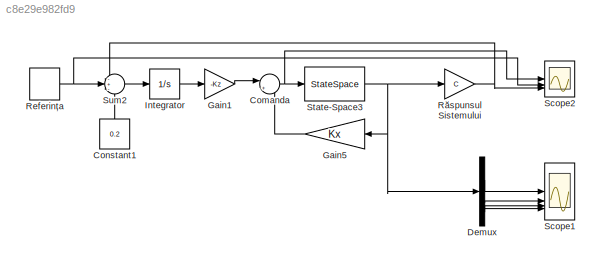
MODEL slx_c8e29e982fd9
KIND model
CONFIG AbsTol = auto
CONFIG EnableMultiTasking = off
CONFIG FixedStep = auto
CONFIG MaxStep = auto
CONFIG MinStep = auto
CONFIG RelTol = 1e-3
CONFIG SampleTimeConstraint = Unconstrained
CONFIG SolverName = VariableStepAuto
CONFIG StartTime = 0.0
CONFIG StopTime = 100
BLOCK [Sum] Comanda
  Inputs = |+-
BLOCK [Constant] Constant1
  NameLocation = right
  Value = 0.2
BLOCK [Demux] Demux
BLOCK [Gain] Gain1
  Gain = -Kz
BLOCK [Gain] Gain5
  Gain = Kx
  Multiplication = Matrix(K*u) (u vector)
  NameLocation = top
BLOCK [Integrator] Integrator
BLOCK [DiscretePulseGenerator] Referința
  Amplitude = 0.4
  Period = 30
  PhaseDelay = 15
  PulseType = Time based
  PulseWidth = 50
BLOCK [Gain] Răspunsul Sistemului
  Gain = C
  Multiplication = Matrix(K*u) (u vector)
BLOCK [Scope] Scope1
  Floating = off
  NumInputPorts = 4
  ScopeSpecificationString = Simulink.scopes.TimeScopeBlockCfg('CurrentConfiguration', extmgr.ConfigurationSet(extmgr.Configuration('Core','General UI',true,'FigureColor',[1 1 1]),extmgr.Configuration('Core','Source UI',true),extmgr.Configuration('Sources','WiredSimulink',true,'DataLoggingVariableName','ScopeData1'),extmgr.Configuration('Visuals','Time Domain',true,'SerializedDisplays',{struct('MinYLimReal','-1.51488','MaxYLi...<+1822ch>
BLOCK [Scope] Scope2
  Floating = off
  NumInputPorts = 3
  ScopeSpecificationString = Simulink.scopes.TimeScopeBlockCfg('CurrentConfiguration', extmgr.ConfigurationSet(extmgr.Configuration('Core','General UI',true,'FigureColor',[1 1 1]),extmgr.Configuration('Core','Source UI',true),extmgr.Configuration('Sources','WiredSimulink',true),extmgr.Configuration('Visuals','Time Domain',true,'PlotType','Line','SerializedDisplays',{struct('MinYLimReal','-61.88329','MaxYLimReal','71.81412','Y...<+2651ch>
BLOCK [StateSpace] State-Space3
  A = A
  B = B
  C = eye(4)
  D = [0;0;0;0]
  InitialCondition = [1;1;1;1]
BLOCK [Sum] Sum2
  Inputs = -+-
NET Comanda:1 -> Scope2:1, State-Space3:1
LINE Constant1:1 -> Sum2:3
LINE Demux:1 -> Scope1:1
LINE Demux:2 -> Scope1:2
LINE Demux:3 -> Scope1:3
LINE Demux:4 -> Scope1:4
LINE Gain1:1 -> Comanda:1
LINE Gain5:1 -> Comanda:2
LINE Integrator:1 -> Gain1:1
NET Referința:1 -> Scope2:2, Sum2:2
NET Răspunsul Sistemului:1 -> Scope2:3, Sum2:1
NET State-Space3:1 -> Demux:1, Gain5:1, Răspunsul Sistemului:1
LINE Sum2:1 -> Integrator:1
note: NET lines group one-source signal fan-out (src -> all destinations, sorted); 1:1 wires keep LINE
